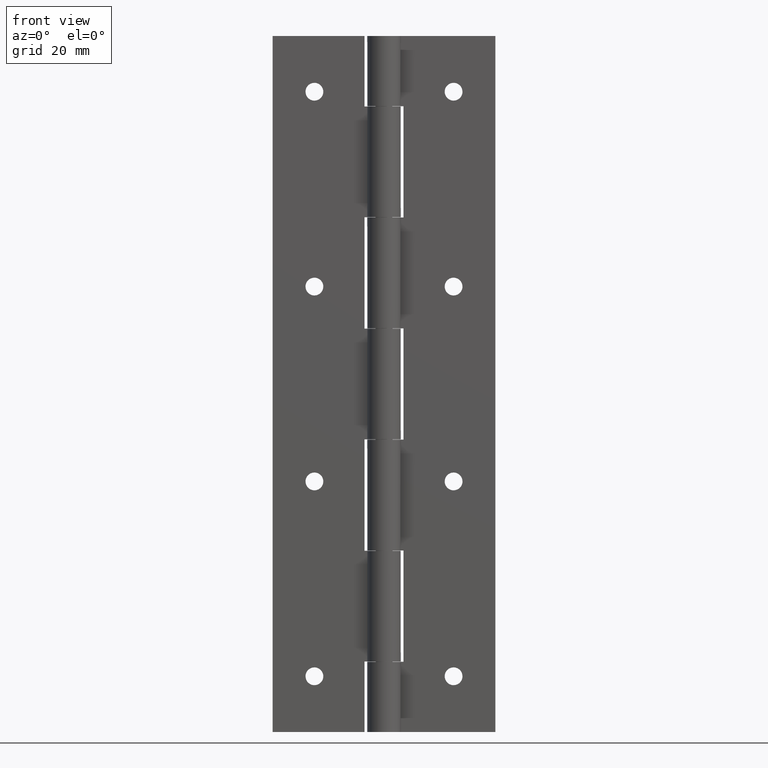
[diagram: clean part render]
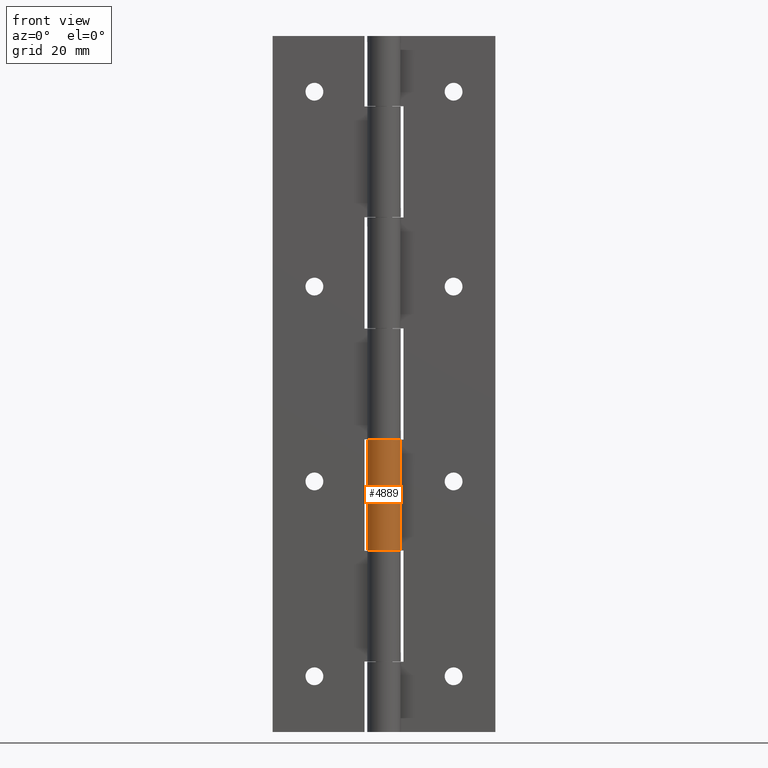
[diagram: same view with one face highlighted and labeled with its STEP entity id]
A machine part, front view. The second image highlights one B-rep face of the part: STEP entity #4889.
In plain terms, the highlighted face is a freeform B-spline surface patch.
Its self-contained STEP definition (entity closure, byte-faithful):
#4256=CARTESIAN_POINT('',(2.891366458960195,0.799999999999990,32.599999999999987));
#4257=VERTEX_POINT('',#4256);
#4265=CARTESIAN_POINT('',(0.0,3.0,32.599999999999987));
#4266=VERTEX_POINT('',#4265);
#4267=CARTESIAN_POINT('',(0.0,3.0,32.599999999999987));
#4268=CARTESIAN_POINT('',(-2.154389185989602,3.0,32.599999999999994));
#4269=CARTESIAN_POINT('',(-2.842745313230503,0.958540079551194,32.599999999999987));
#4270=CARTESIAN_POINT('',(-3.531101440471405,-1.082919840897612,32.599999999999994));
#4271=CARTESIAN_POINT('',(-1.816590212458500,-2.387467277262661,32.599999999999987));
#4272=CARTESIAN_POINT('',(-0.102078984445597,-3.692014713627708,32.599999999999994));
#4273=CARTESIAN_POINT('',(1.681895628722574,-2.484195462133344,32.599999999999987));
#4274=CARTESIAN_POINT('',(3.465870241890748,-1.276376210638978,32.599999999999994));
#4275=CARTESIAN_POINT('',(2.891366458960195,0.799999999999989,32.599999999999987));
#4283=(BOUNDED_CURVE()B_SPLINE_CURVE(2,(#4267,#4268,#4269,#4270,#4271,#4272,#4273,#4274,#4275),.UNSPECIFIED.,.F.,.U.)B_SPLINE_CURVE_WITH_KNOTS((3,2,2,2,3),(0.0,0.250000000000000,0.500000000000000,0.750000000000000,1.0),.UNSPECIFIED.)CURVE()GEOMETRIC_REPRESENTATION_ITEM()RATIONAL_B_SPLINE_CURVE((1.0,0.812254073504836,1.0,0.812254073504836,1.0,0.812254073504836,1.0,0.812254073504836,1.0))REPRESENTATION_ITEM(''));
#4284=EDGE_CURVE('',#4266,#4257,#4283,.T.);
#4473=CARTESIAN_POINT('',(0.0,3.0,52.500000000000000));
#4474=VERTEX_POINT('',#4473);
#4480=CARTESIAN_POINT('',(2.891366458960195,0.799999999999990,52.500000000000000));
#4481=VERTEX_POINT('',#4480);
#4482=CARTESIAN_POINT('',(2.891366458960195,0.799999999999991,52.500000000000000));
#4483=CARTESIAN_POINT('',(3.465870241890749,-1.276376210638973,52.500000000000000));
#4484=CARTESIAN_POINT('',(1.681895628722578,-2.484195462133341,52.500000000000000));
#4485=CARTESIAN_POINT('',(-0.102078984445593,-3.692014713627709,52.500000000000000));
#4486=CARTESIAN_POINT('',(-1.816590212458499,-2.387467277262662,52.500000000000000));
#4487=CARTESIAN_POINT('',(-3.531101440471402,-1.082919840897615,52.500000000000000));
#4488=CARTESIAN_POINT('',(-2.842745313230505,0.958540079551190,52.500000000000000));
#4489=CARTESIAN_POINT('',(-2.154389185989606,3.000000000000000,52.500000000000000));
#4490=CARTESIAN_POINT('',(0.0,3.0,52.500000000000000));
#4498=(BOUNDED_CURVE()B_SPLINE_CURVE(2,(#4482,#4483,#4484,#4485,#4486,#4487,#4488,#4489,#4490),.UNSPECIFIED.,.F.,.U.)B_SPLINE_CURVE_WITH_KNOTS((3,2,2,2,3),(0.0,0.250000000000000,0.500000000000000,0.750000000000000,1.0),.UNSPECIFIED.)CURVE()GEOMETRIC_REPRESENTATION_ITEM()RATIONAL_B_SPLINE_CURVE((1.0,0.812254073504836,1.0,0.812254073504836,1.0,0.812254073504836,1.0,0.812254073504836,1.0))REPRESENTATION_ITEM(''));
#4499=EDGE_CURVE('',#4481,#4474,#4498,.T.);
#4853=CARTESIAN_POINT('',(0.026179606495119,2.999885769192513,52.997500000000009));
#4854=CARTESIAN_POINT('',(0.026179606495119,2.999885769192513,32.090062499999988));
#4855=CARTESIAN_POINT('',(-3.325084170610387,3.029131805107269,52.997500000000024));
#4856=CARTESIAN_POINT('',(-3.325084170610387,3.029131805107269,32.090062499999981));
#4857=CARTESIAN_POINT('',(-2.984465244888098,-0.304905234548407,52.997500000000009));
#4858=CARTESIAN_POINT('',(-2.984465244888098,-0.304905234548407,32.090062499999988));
#4859=CARTESIAN_POINT('',(-2.643846319165810,-3.638942274204082,52.997500000000024));
#4860=CARTESIAN_POINT('',(-2.643846319165810,-3.638942274204082,32.090062499999981));
#4861=CARTESIAN_POINT('',(0.632268369622049,-2.932616017956574,52.997500000000009));
#4862=CARTESIAN_POINT('',(0.632268369622049,-2.932616017956574,32.090062499999988));
#4863=CARTESIAN_POINT('',(3.908383058409907,-2.226289761709064,52.997500000000024));
#4864=CARTESIAN_POINT('',(3.908383058409907,-2.226289761709064,32.090062499999981));
#4865=CARTESIAN_POINT('',(2.844970965618598,0.951913969215276,52.997500000000009));
#4866=CARTESIAN_POINT('',(2.844970965618598,0.951913969215276,32.090062499999988));
#4874=(BOUNDED_SURFACE()B_SPLINE_SURFACE(1,2,((#4853,#4855,#4857,#4859,#4861,#4863,#4865),(#4854,#4856,#4858,#4860,#4862,#4864,#4866)),.UNSPECIFIED.,.F.,.F.,.U.)B_SPLINE_SURFACE_WITH_KNOTS((2,2),(3,2,2,3),(0.0,20.907437500000022),(0.0,5.363670823615206,10.727341647230411,16.091012470845619),.UNSPECIFIED.)GEOMETRIC_REPRESENTATION_ITEM()RATIONAL_B_SPLINE_SURFACE(((1.0,0.666966057782736,1.0,0.666966057782736,1.0,0.666966057782736,1.0),(1.0,0.666966057782736,1.0,0.666966057782736,1.0,0.666966057782736,1.0)))REPRESENTATION_ITEM('')SURFACE());
#4875=ORIENTED_EDGE('',*,*,#4284,.T.);
#4876=CARTESIAN_POINT('',(2.891366458960195,0.799999999999990,52.500000000000000));
#4877=CARTESIAN_POINT('',(2.891366458960195,0.799999999999990,32.599999999999987));
#4878=QUASI_UNIFORM_CURVE('',1,(#4876,#4877),.UNSPECIFIED.,.F.,.U.);
#4879=EDGE_CURVE('',#4481,#4257,#4878,.T.);
#4880=ORIENTED_EDGE('',*,*,#4879,.F.);
#4881=ORIENTED_EDGE('',*,*,#4499,.T.);
#4882=CARTESIAN_POINT('',(0.0,3.0,52.500000000000000));
#4883=CARTESIAN_POINT('',(0.0,3.0,32.599999999999987));
#4884=QUASI_UNIFORM_CURVE('',1,(#4882,#4883),.UNSPECIFIED.,.F.,.U.);
#4885=EDGE_CURVE('',#4474,#4266,#4884,.T.);
#4886=ORIENTED_EDGE('',*,*,#4885,.T.);
#4887=EDGE_LOOP('',(#4875,#4880,#4881,#4886));
#4888=FACE_OUTER_BOUND('',#4887,.T.);
#4889=ADVANCED_FACE('',(#4888),#4874,.T.);